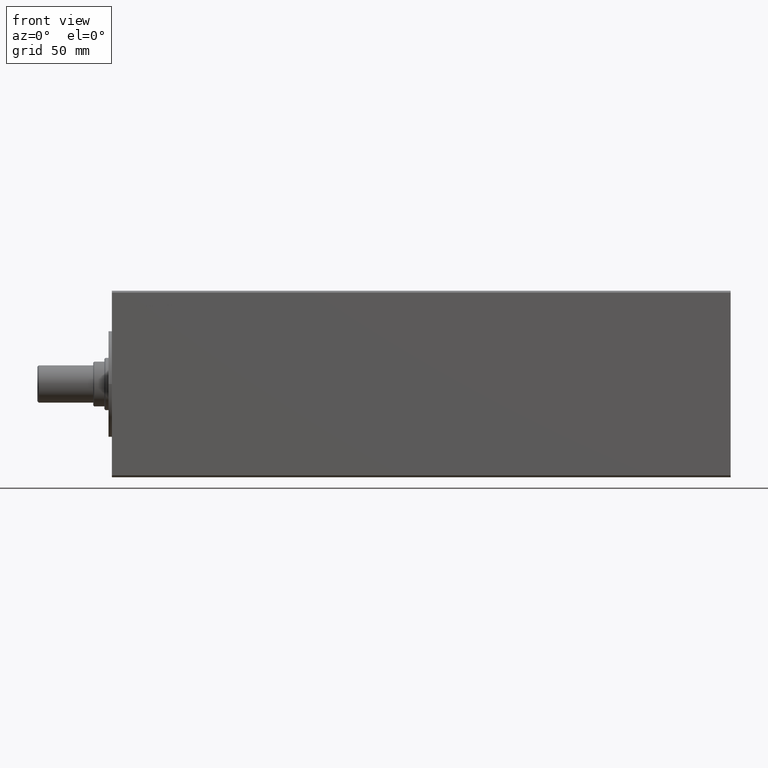
[diagram: clean part render]
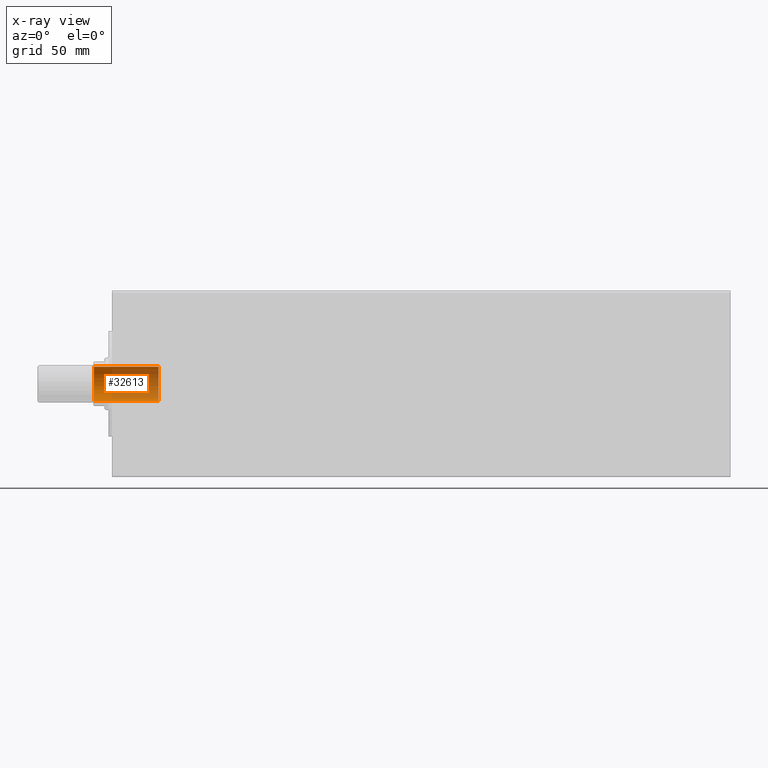
[diagram: x-ray — body ghosted, one internal face saturated and labeled with its STEP entity id]
A machine part, front view, then the same camera in x-ray: the body is ghosted and one INTERNAL B-rep face — a face not visible from any outside direction — is saturated and labeled: STEP entity #32613.
In plain terms, the highlighted cylindrical surface (edge-blend (fillet) strip) has radius 9.25 mm, axis along (-1, 0, 0).
Its self-contained STEP definition (entity closure, byte-faithful):
#12 = FACE_OUTER_BOUND ( 'NONE', #10323, .T. ) ;
#175 = LINE ( 'NONE', #24790, #4297 ) ;
#1113 = VERTEX_POINT ( 'NONE', #9900 ) ;
#3140 = CARTESIAN_POINT ( 'NONE',  ( 0.000000000000000000, 0.000000000000000000, 324.2000000000000455 ) ) ;
#4297 = VECTOR ( 'NONE', #38431, 1000.000000000000000 ) ;
#5847 = CYLINDRICAL_SURFACE ( 'NONE', #19408, 9.249999999999996447 ) ;
#6269 = EDGE_CURVE ( 'NONE', #33829, #1113, #40553, .T. ) ;
#6715 = CARTESIAN_POINT ( 'NONE',  ( 0.000000000000000000, 0.000000000000000000, 289.1999999999999886 ) ) ;
#7377 = CARTESIAN_POINT ( 'NONE',  ( 9.249999999999996447, 0.000000000000000000, 323.9000000000000341 ) ) ;
#9900 = CARTESIAN_POINT ( 'NONE',  ( -9.249999999999996447, 1.132798289211301304E-15, 323.9000000000000341 ) ) ;
#10323 = EDGE_LOOP ( 'NONE', ( #17621, #20970, #44224, #35248 ) ) ;
#13439 = DIRECTION ( 'NONE',  ( -0.000000000000000000, -0.000000000000000000, 1.000000000000000000 ) ) ;
#14104 = CARTESIAN_POINT ( 'NONE',  ( 9.249999999999994671, 0.000000000000000000, 289.1999999999999886 ) ) ;
#14948 = VECTOR ( 'NONE', #24222, 1000.000000000000000 ) ;
#15353 = CIRCLE ( 'NONE', #40354, 9.249999999999994671 ) ;
#16372 = CIRCLE ( 'NONE', #41372, 9.249999999999996447 ) ;
#17621 = ORIENTED_EDGE ( 'NONE', *, *, #6269, .F. ) ;
#18987 = DIRECTION ( 'NONE',  ( 0.000000000000000000, 0.000000000000000000, 1.000000000000000000 ) ) ;
#19408 = AXIS2_PLACEMENT_3D ( 'NONE', #3140, #13439, #30670 ) ;
#19977 = CARTESIAN_POINT ( 'NONE',  ( -9.249999999999996447, 1.132798289211301304E-15, 324.2000000000000455 ) ) ;
#20970 = ORIENTED_EDGE ( 'NONE', *, *, #40577, .F. ) ;
#21183 = EDGE_CURVE ( 'NONE', #25806, #1113, #16372, .T. ) ;
#24222 = DIRECTION ( 'NONE',  ( -0.000000000000000000, -0.000000000000000000, 1.000000000000000000 ) ) ;
#24790 = CARTESIAN_POINT ( 'NONE',  ( 9.249999999999996447, 0.000000000000000000, 324.2000000000000455 ) ) ;
#25032 = EDGE_CURVE ( 'NONE', #30193, #25806, #175, .T. ) ;
#25806 = VERTEX_POINT ( 'NONE', #7377 ) ;
#27751 = DIRECTION ( 'NONE',  ( -0.000000000000000000, -0.000000000000000000, 1.000000000000000000 ) ) ;
#30193 = VERTEX_POINT ( 'NONE', #14104 ) ;
#30670 = DIRECTION ( 'NONE',  ( 1.000000000000000000, 0.000000000000000000, 0.000000000000000000 ) ) ;
#32613 = ADVANCED_FACE ( 'NONE', ( #12 ), #5847, .F. ) ;
#32620 = CARTESIAN_POINT ( 'NONE',  ( 0.000000000000000000, 0.000000000000000000, 323.9000000000000341 ) ) ;
#33829 = VERTEX_POINT ( 'NONE', #39563 ) ;
#35248 = ORIENTED_EDGE ( 'NONE', *, *, #21183, .T. ) ;
#37454 = DIRECTION ( 'NONE',  ( 1.000000000000000000, 0.000000000000000000, 0.000000000000000000 ) ) ;
#38431 = DIRECTION ( 'NONE',  ( -0.000000000000000000, -0.000000000000000000, 1.000000000000000000 ) ) ;
#39563 = CARTESIAN_POINT ( 'NONE',  ( -9.249999999999994671, 1.132798289211300909E-15, 289.1999999999999886 ) ) ;
#40354 = AXIS2_PLACEMENT_3D ( 'NONE', #6715, #27751, #41395 ) ;
#40553 = LINE ( 'NONE', #19977, #14948 ) ;
#40577 = EDGE_CURVE ( 'NONE', #30193, #33829, #15353, .T. ) ;
#41372 = AXIS2_PLACEMENT_3D ( 'NONE', #32620, #18987, #37454 ) ;
#41395 = DIRECTION ( 'NONE',  ( 1.000000000000000000, 0.000000000000000000, 0.000000000000000000 ) ) ;
#44224 = ORIENTED_EDGE ( 'NONE', *, *, #25032, .T. ) ;